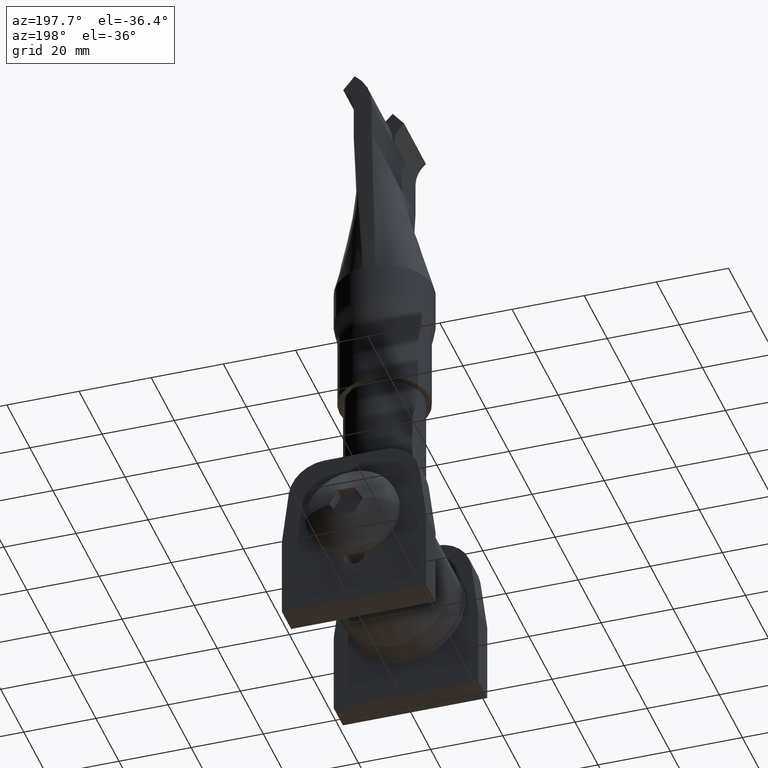
[diagram: clean part render]
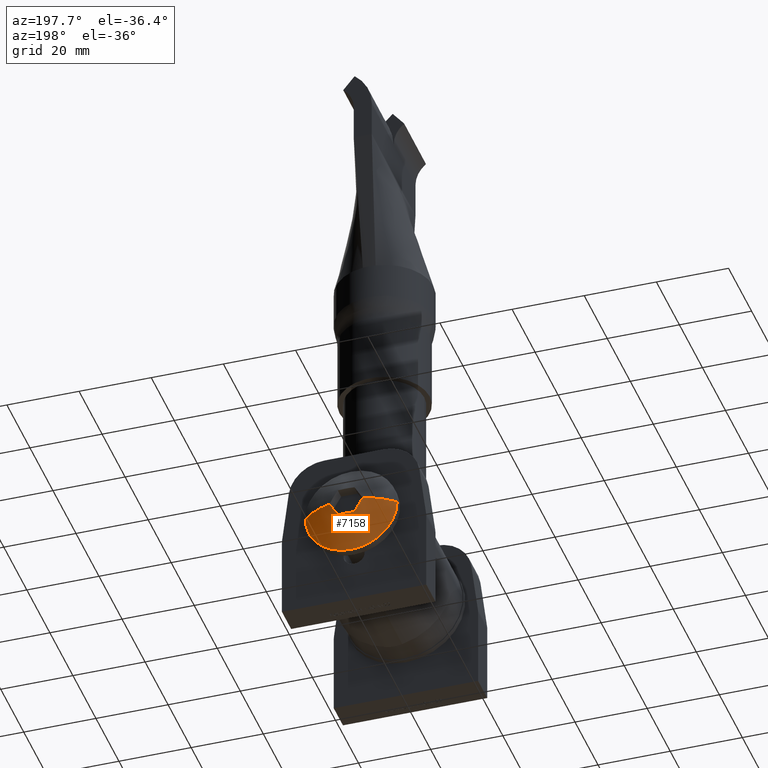
[diagram: same view with one face highlighted and labeled with its STEP entity id]
A machine part, auxiliary view. The second image highlights one B-rep face of the part: STEP entity #7158.
In plain terms, the highlighted spherical surface has radius 18.7562 mm.
Its self-contained STEP definition (entity closure, byte-faithful):
#49 = ORIENTED_EDGE ( 'NONE', *, *, #666, .F. ) ;
#452 = ORIENTED_EDGE ( 'NONE', *, *, #14839, .F. ) ;
#546 = VERTEX_POINT ( 'NONE', #17837 ) ;
#666 = EDGE_CURVE ( 'NONE', #10036, #6574, #3640, .T. ) ;
#739 = CIRCLE ( 'NONE', #4059, 12.75000000000000000 ) ;
#1234 = VERTEX_POINT ( 'NONE', #15313 ) ;
#1294 = DIRECTION ( 'NONE',  ( 3.755786496842900000E-016, 0.0000000000000000000, 1.000000000000000000 ) ) ;
#1361 = DIRECTION ( 'NONE',  ( -0.5000000000000003300, 1.240118542287336700E-014, -0.8660254037844384900 ) ) ;
#1699 = CIRCLE ( 'NONE', #3484, 18.32476231939994400 ) ;
#1884 = DIRECTION ( 'NONE',  ( -0.0000000000000000000, -1.000000000000000000, -0.0000000000000000000 ) ) ;
#2406 = CARTESIAN_POINT ( 'NONE',  ( -3.464101615137754400, 8.743750000000002100, -1.999999999999999600 ) ) ;
#2869 = EDGE_CURVE ( 'NONE', #11756, #6574, #16376, .T. ) ;
#3484 = AXIS2_PLACEMENT_3D ( 'NONE', #12228, #19911, #1361 ) ;
#3518 = EDGE_LOOP ( 'NONE', ( #12724, #6420, #10531, #10206, #15197, #49, #452 ) ) ;
#3640 = CIRCLE ( 'NONE', #7202, 12.75000000000000000 ) ;
#4059 = AXIS2_PLACEMENT_3D ( 'NONE', #8283, #1884, #9699 ) ;
#4075 = EDGE_CURVE ( 'NONE', #10710, #546, #15054, .T. ) ;
#4579 = EDGE_CURVE ( 'NONE', #1234, #10710, #12096, .T. ) ;
#4742 = DIRECTION ( 'NONE',  ( 0.0000000000000000000, 0.0000000000000000000, 1.000000000000000000 ) ) ;
#5373 = EDGE_CURVE ( 'NONE', #546, #19273, #5766, .T. ) ;
#5766 = CIRCLE ( 'NONE', #17510, 18.75624999999999800 ) ;
#5805 = AXIS2_PLACEMENT_3D ( 'NONE', #2406, #11432, #7034 ) ;
#5906 = DIRECTION ( 'NONE',  ( 0.0000000000000000000, 0.0000000000000000000, -1.000000000000000000 ) ) ;
#6309 = CARTESIAN_POINT ( 'NONE',  ( 0.0000000000000000000, 8.743750000000002100, 0.0000000000000000000 ) ) ;
#6420 = ORIENTED_EDGE ( 'NONE', *, *, #4075, .F. ) ;
#6574 = VERTEX_POINT ( 'NONE', #14847 ) ;
#6986 = DIRECTION ( 'NONE',  ( 1.224646799147353200E-016, -0.0000000000000000000, 1.000000000000000000 ) ) ;
#7034 = DIRECTION ( 'NONE',  ( -0.4999999999999998900, 1.240118542287336700E-014, 0.8660254037844387100 ) ) ;
#7158 = ADVANCED_FACE ( 'NONE', ( #19459 ), #18738, .T. ) ;
#7202 = AXIS2_PLACEMENT_3D ( 'NONE', #13516, #19749, #5906 ) ;
#7485 = CARTESIAN_POINT ( 'NONE',  ( -1.502314598737159800E-015, 8.743750000000002100, -3.999999999999999100 ) ) ;
#8283 = CARTESIAN_POINT ( 'NONE',  ( 0.0000000000000000000, 22.50000000000000000, 0.0000000000000000000 ) ) ;
#8495 = DIRECTION ( 'NONE',  ( 1.000000000000000000, 0.0000000000000000000, -1.224646799147353200E-016 ) ) ;
#8987 = DIRECTION ( 'NONE',  ( -1.000000000000000000, 1.240118542287336800E-014, 3.786621503167441000E-016 ) ) ;
#9699 = DIRECTION ( 'NONE',  ( 0.0000000000000000000, 0.0000000000000000000, -1.000000000000000000 ) ) ;
#10036 = VERTEX_POINT ( 'NONE', #14677 ) ;
#10206 = ORIENTED_EDGE ( 'NONE', *, *, #12675, .F. ) ;
#10531 = ORIENTED_EDGE ( 'NONE', *, *, #4579, .F. ) ;
#10710 = VERTEX_POINT ( 'NONE', #17680 ) ;
#11115 = AXIS2_PLACEMENT_3D ( 'NONE', #19211, #13033, #13100 ) ;
#11385 = AXIS2_PLACEMENT_3D ( 'NONE', #7485, #1294, #8987 ) ;
#11432 = DIRECTION ( 'NONE',  ( 0.8660254037844387100, 0.0000000000000000000, 0.5000000000000000000 ) ) ;
#11756 = VERTEX_POINT ( 'NONE', #20099 ) ;
#12096 = CIRCLE ( 'NONE', #11385, 18.32476231939994100 ) ;
#12228 = CARTESIAN_POINT ( 'NONE',  ( 3.464101615137753900, 8.743750000000002100, -2.000000000000001300 ) ) ;
#12675 = EDGE_CURVE ( 'NONE', #11756, #1234, #1699, .T. ) ;
#12724 = ORIENTED_EDGE ( 'NONE', *, *, #5373, .F. ) ;
#13033 = DIRECTION ( 'NONE',  ( 0.0000000000000000000, 0.0000000000000000000, -1.000000000000000000 ) ) ;
#13100 = DIRECTION ( 'NONE',  ( -1.000000000000000000, 0.0000000000000000000, 0.0000000000000000000 ) ) ;
#13516 = CARTESIAN_POINT ( 'NONE',  ( 0.0000000000000000000, 22.50000000000000000, 0.0000000000000000000 ) ) ;
#14376 = CARTESIAN_POINT ( 'NONE',  ( -12.75000000000000200, 22.50000000000000000, 1.561424668912875300E-015 ) ) ;
#14677 = CARTESIAN_POINT ( 'NONE',  ( 0.0000000000000000000, 22.50000000000000000, -12.75000000000000000 ) ) ;
#14839 = EDGE_CURVE ( 'NONE', #19273, #10036, #739, .T. ) ;
#14847 = CARTESIAN_POINT ( 'NONE',  ( 12.75000000000000200, 22.50000000000000000, 0.0000000000000000000 ) ) ;
#15054 = CIRCLE ( 'NONE', #5805, 18.32476231939994400 ) ;
#15197 = ORIENTED_EDGE ( 'NONE', *, *, #2869, .T. ) ;
#15313 = CARTESIAN_POINT ( 'NONE',  ( 2.309401076758502000, 26.92240728620149400, -4.000000000000000000 ) ) ;
#16256 = CARTESIAN_POINT ( 'NONE',  ( 0.0000000000000000000, 8.743750000000002100, 0.0000000000000000000 ) ) ;
#16376 = CIRCLE ( 'NONE', #11115, 18.75624999999999800 ) ;
#17146 = DIRECTION ( 'NONE',  ( 1.000000000000000000, 0.0000000000000000000, 0.0000000000000000000 ) ) ;
#17510 = AXIS2_PLACEMENT_3D ( 'NONE', #16256, #6986, #8495 ) ;
#17680 = CARTESIAN_POINT ( 'NONE',  ( -2.309401076758502900, 26.92240728620149400, -3.999999999999998200 ) ) ;
#17837 = CARTESIAN_POINT ( 'NONE',  ( -4.618802153517005800, 26.92240728620149400, 0.0000000000000000000 ) ) ;
#18738 = SPHERICAL_SURFACE ( 'NONE', #19110, 18.75624999999999800 ) ;
#19110 = AXIS2_PLACEMENT_3D ( 'NONE', #6309, #4742, #17146 ) ;
#19211 = CARTESIAN_POINT ( 'NONE',  ( 0.0000000000000000000, 8.743750000000002100, 0.0000000000000000000 ) ) ;
#19273 = VERTEX_POINT ( 'NONE', #14376 ) ;
#19459 = FACE_OUTER_BOUND ( 'NONE', #3518, .T. ) ;
#19749 = DIRECTION ( 'NONE',  ( -0.0000000000000000000, -1.000000000000000000, -0.0000000000000000000 ) ) ;
#19911 = DIRECTION ( 'NONE',  ( -0.8660254037844384900, -0.0000000000000000000, 0.5000000000000003300 ) ) ;
#20099 = CARTESIAN_POINT ( 'NONE',  ( 4.618802153517006700, 26.92240728620149400, -8.673617379884035500E-016 ) ) ;